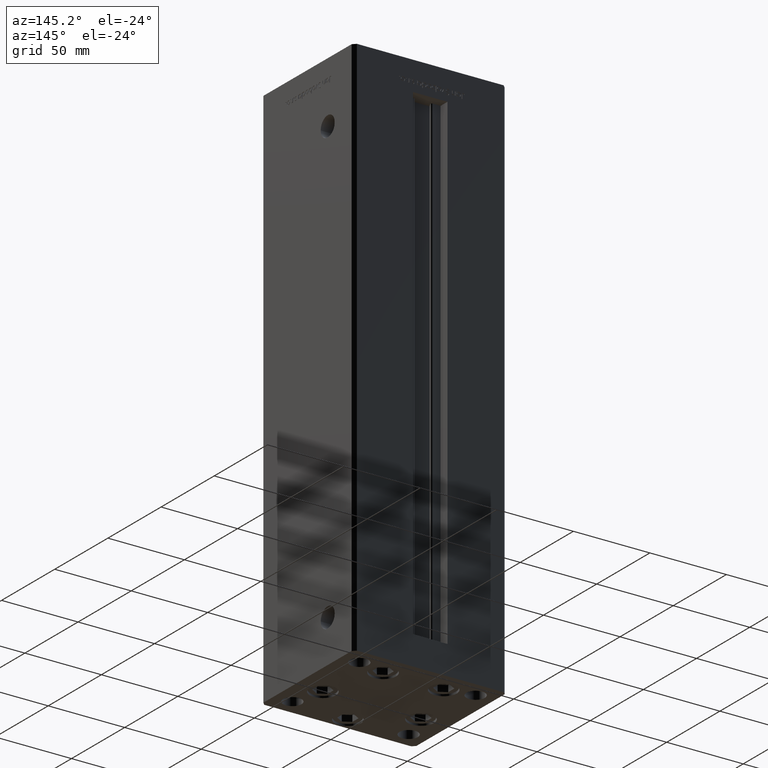
[diagram: clean part render]
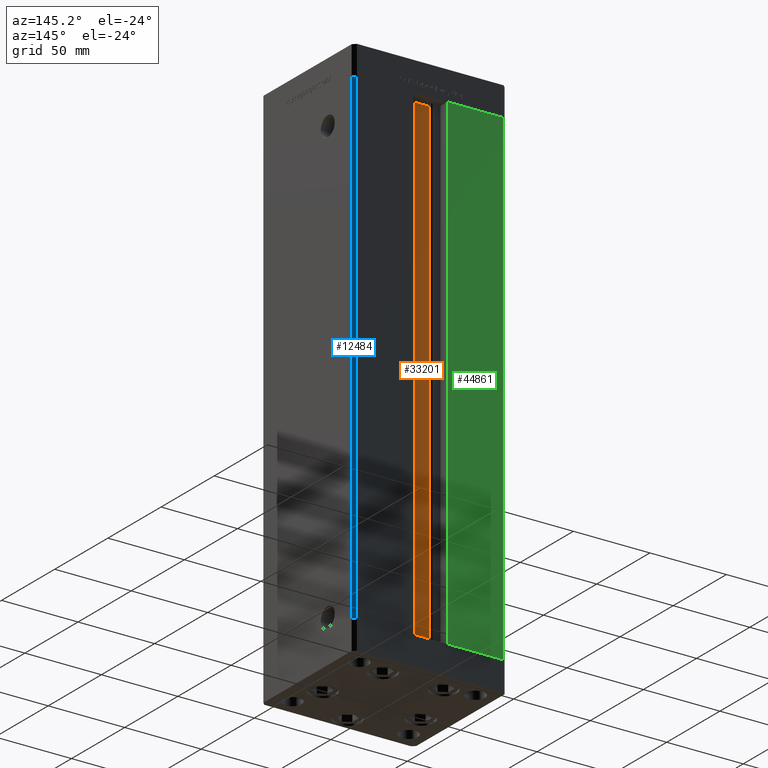
[diagram: same view with three faces highlighted in distinct colors, each labeled with its STEP entity id]
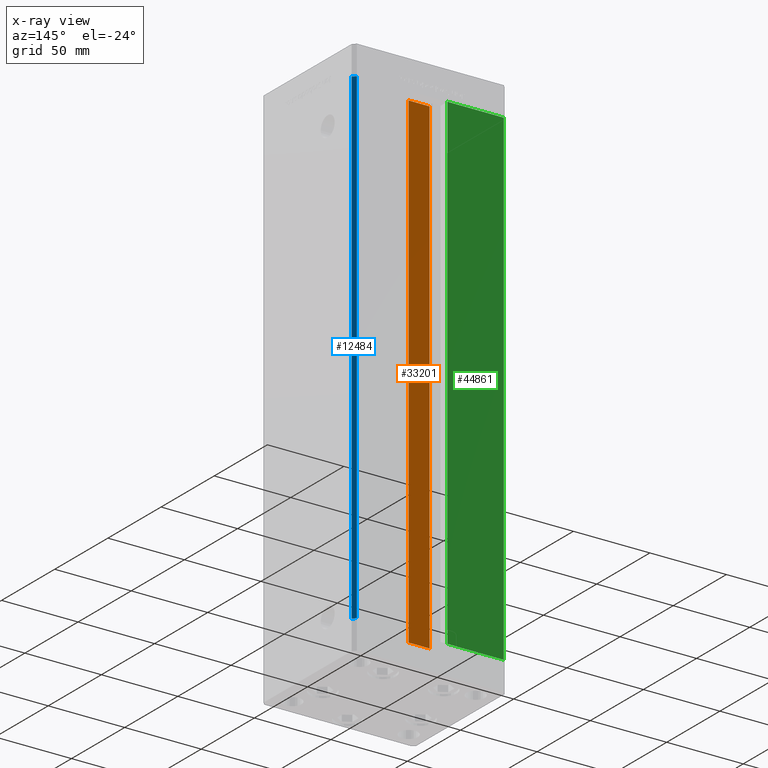
[diagram: x-ray of the same camera — body ghosted, the three highlighted faces saturated]
A machine part, auxiliary view with three faces highlighted in distinct colors.
The next image is the same camera in x-ray (body ghosted, the three faces saturated) — at least one of them is partly hidden behind the body in this view.
Their STEP definitions:

[orange] entity #33201 — the highlighted planar face has unit normal (0, -1, 0).
#333 = LINE ( 'NONE', #31770, #3927 ) ;
#551 = CARTESIAN_POINT ( 'NONE',  ( 6.876153656360465050, 32.99999999999986500, 0.000000000000000000 ) ) ;
#1448 = ORIENTED_EDGE ( 'NONE', *, *, #43916, .T. ) ;
#1594 = CARTESIAN_POINT ( 'NONE',  ( 6.876153656360465050, 32.99999999999986500, 0.000000000000000000 ) ) ;
#2938 = EDGE_CURVE ( 'NONE', #40730, #41706, #21673, .T. ) ;
#3031 = PLANE ( 'NONE',  #32833 ) ;
#3798 = EDGE_CURVE ( 'NONE', #41706, #50554, #333, .T. ) ;
#3927 = VECTOR ( 'NONE', #12486, 1000.000000000000000 ) ;
#4693 = DIRECTION ( 'NONE',  ( -1.000000000000000000, 0.000000000000000000, 0.000000000000000000 ) ) ;
#6493 = DIRECTION ( 'NONE',  ( 0.000000000000000000, 0.000000000000000000, -1.000000000000000000 ) ) ;
#9029 = CARTESIAN_POINT ( 'NONE',  ( -6.876153656360465050, 32.99999999999986500, 0.000000000000000000 ) ) ;
#10674 = VECTOR ( 'NONE', #30896, 1000.000000000000000 ) ;
#11295 = EDGE_CURVE ( 'NONE', #50554, #52120, #17375, .T. ) ;
#12486 = DIRECTION ( 'NONE',  ( -0.000000000000000000, -0.000000000000000000, 1.000000000000000000 ) ) ;
#16791 = ORIENTED_EDGE ( 'NONE', *, *, #3798, .F. ) ;
#17375 = LINE ( 'NONE', #44541, #49668 ) ;
#21673 = LINE ( 'NONE', #1594, #10674 ) ;
#21718 = EDGE_LOOP ( 'NONE', ( #16791, #22705, #1448, #40918 ) ) ;
#22190 = VECTOR ( 'NONE', #25122, 1000.000000000000000 ) ;
#22705 = ORIENTED_EDGE ( 'NONE', *, *, #2938, .F. ) ;
#24346 = LINE ( 'NONE', #9029, #22190 ) ;
#25122 = DIRECTION ( 'NONE',  ( -0.000000000000000000, -0.000000000000000000, 1.000000000000000000 ) ) ;
#27171 = CARTESIAN_POINT ( 'NONE',  ( 6.876153656360465050, 32.99999999999986500, 318.5000000000000000 ) ) ;
#30780 = CARTESIAN_POINT ( 'NONE',  ( 6.876153656360465050, 32.99999999999986500, 0.000000000000000000 ) ) ;
#30896 = DIRECTION ( 'NONE',  ( 1.000000000000000000, -0.000000000000000000, -0.000000000000000000 ) ) ;
#31770 = CARTESIAN_POINT ( 'NONE',  ( 6.876153656360465050, 32.99999999999986500, 0.000000000000000000 ) ) ;
#32833 = AXIS2_PLACEMENT_3D ( 'NONE', #30780, #46848, #6493 ) ;
#33201 = ADVANCED_FACE ( 'NONE', ( #42891 ), #3031, .F. ) ;
#40730 = VERTEX_POINT ( 'NONE', #50730 ) ;
#40918 = ORIENTED_EDGE ( 'NONE', *, *, #11295, .F. ) ;
#41706 = VERTEX_POINT ( 'NONE', #551 ) ;
#42891 = FACE_OUTER_BOUND ( 'NONE', #21718, .T. ) ;
#43916 = EDGE_CURVE ( 'NONE', #40730, #52120, #24346, .T. ) ;
#44541 = CARTESIAN_POINT ( 'NONE',  ( 0.000000000000000000, 32.99999999999986500, 318.5000000000000000 ) ) ;
#46230 = CARTESIAN_POINT ( 'NONE',  ( -6.876153656360465050, 32.99999999999986500, 318.5000000000000000 ) ) ;
#46848 = DIRECTION ( 'NONE',  ( 0.000000000000000000, -1.000000000000000000, -0.000000000000000000 ) ) ;
#49668 = VECTOR ( 'NONE', #4693, 1000.000000000000000 ) ;
#50554 = VERTEX_POINT ( 'NONE', #27171 ) ;
#50730 = CARTESIAN_POINT ( 'NONE',  ( -6.876153656360465050, 32.99999999999986500, 0.000000000000000000 ) ) ;
#52120 = VERTEX_POINT ( 'NONE', #46230 ) ;

[blue] entity #12484 — the highlighted planar face has unit normal (0.7071, 0.7071, 0).
#2858 = DIRECTION ( 'NONE',  ( 0.7071067811865487940, -0.7071067811865463515, 0.000000000000000000 ) ) ;
#3376 = DIRECTION ( 'NONE',  ( -0.000000000000000000, -0.000000000000000000, -1.000000000000000000 ) ) ;
#3544 = ORIENTED_EDGE ( 'NONE', *, *, #21295, .T. ) ;
#4724 = DIRECTION ( 'NONE',  ( -0.7071067811865487940, 0.7071067811865463515, 0.000000000000000000 ) ) ;
#6055 = LINE ( 'NONE', #11064, #10253 ) ;
#6729 = VERTEX_POINT ( 'NONE', #10066 ) ;
#8123 = EDGE_CURVE ( 'NONE', #6729, #21772, #13104, .T. ) ;
#10066 = CARTESIAN_POINT ( 'NONE',  ( 48.00000000000000711, 43.50000000000000000, 318.5000000000000000 ) ) ;
#10253 = VECTOR ( 'NONE', #2858, 1000.000000000000000 ) ;
#11064 = CARTESIAN_POINT ( 'NONE',  ( 48.00000000000000711, 43.50000000000000000, 318.5000000000000000 ) ) ;
#11160 = LINE ( 'NONE', #27259, #13794 ) ;
#12121 = VERTEX_POINT ( 'NONE', #12213 ) ;
#12213 = CARTESIAN_POINT ( 'NONE',  ( 50.00000000000001421, 41.49999999999999289, 318.5000000000000000 ) ) ;
#12405 = CARTESIAN_POINT ( 'NONE',  ( 48.00000000000000711, 43.50000000000000000, 318.5000000000000000 ) ) ;
#12438 = DIRECTION ( 'NONE',  ( 0.7071067811865487940, -0.7071067811865463515, 0.000000000000000000 ) ) ;
#12484 = ADVANCED_FACE ( 'NONE', ( #36669 ), #40885, .T. ) ;
#13104 = LINE ( 'NONE', #29996, #27695 ) ;
#13794 = VECTOR ( 'NONE', #12438, 1000.000000000000000 ) ;
#16049 = CARTESIAN_POINT ( 'NONE',  ( 50.00000000000001421, 41.49999999999999289, 318.5000000000000000 ) ) ;
#16312 = LINE ( 'NONE', #16049, #29608 ) ;
#21120 = EDGE_CURVE ( 'NONE', #6729, #12121, #6055, .T. ) ;
#21295 = EDGE_CURVE ( 'NONE', #12121, #46102, #16312, .T. ) ;
#21772 = VERTEX_POINT ( 'NONE', #23077 ) ;
#23077 = CARTESIAN_POINT ( 'NONE',  ( 48.00000000000000711, 43.50000000000000000, 0.000000000000000000 ) ) ;
#24055 = ORIENTED_EDGE ( 'NONE', *, *, #8123, .F. ) ;
#24542 = DIRECTION ( 'NONE',  ( 0.7071067811865463515, 0.7071067811865487940, -0.000000000000000000 ) ) ;
#24708 = CARTESIAN_POINT ( 'NONE',  ( 50.00000000000001421, 41.49999999999999289, 0.000000000000000000 ) ) ;
#27259 = CARTESIAN_POINT ( 'NONE',  ( 48.00000000000000711, 43.50000000000000000, 0.000000000000000000 ) ) ;
#27695 = VECTOR ( 'NONE', #42125, 1000.000000000000000 ) ;
#29608 = VECTOR ( 'NONE', #3376, 1000.000000000000000 ) ;
#29996 = CARTESIAN_POINT ( 'NONE',  ( 48.00000000000000711, 43.50000000000000000, 318.5000000000000000 ) ) ;
#32538 = ORIENTED_EDGE ( 'NONE', *, *, #45576, .F. ) ;
#36669 = FACE_OUTER_BOUND ( 'NONE', #47342, .T. ) ;
#40885 = PLANE ( 'NONE',  #41307 ) ;
#41307 = AXIS2_PLACEMENT_3D ( 'NONE', #12405, #24542, #4724 ) ;
#41704 = ORIENTED_EDGE ( 'NONE', *, *, #21120, .T. ) ;
#42125 = DIRECTION ( 'NONE',  ( -0.000000000000000000, -0.000000000000000000, -1.000000000000000000 ) ) ;
#45576 = EDGE_CURVE ( 'NONE', #21772, #46102, #11160, .T. ) ;
#46102 = VERTEX_POINT ( 'NONE', #24708 ) ;
#47342 = EDGE_LOOP ( 'NONE', ( #32538, #24055, #41704, #3544 ) ) ;

[green] entity #44861 — the highlighted planar face has unit normal (0, -1, 0).
#2098 = CARTESIAN_POINT ( 'NONE',  ( -11.24999999999999822, 43.50000000000000000, 318.5000000000000000 ) ) ;
#2333 = CARTESIAN_POINT ( 'NONE',  ( -11.24999999999999822, 43.50000000000000000, 0.000000000000000000 ) ) ;
#3797 = CARTESIAN_POINT ( 'NONE',  ( -48.00000000000000711, 43.50000000000000000, 0.000000000000000000 ) ) ;
#4035 = EDGE_CURVE ( 'NONE', #24427, #18823, #22497, .T. ) ;
#7780 = CARTESIAN_POINT ( 'NONE',  ( -48.00000000000000711, 43.50000000000000000, 318.5000000000000000 ) ) ;
#8870 = DIRECTION ( 'NONE',  ( 1.000000000000000000, 0.000000000000000000, 0.000000000000000000 ) ) ;
#10934 = VECTOR ( 'NONE', #48384, 1000.000000000000000 ) ;
#11536 = VECTOR ( 'NONE', #42290, 1000.000000000000000 ) ;
#12863 = CARTESIAN_POINT ( 'NONE',  ( -48.00000000000000711, 43.50000000000000000, 318.5000000000000000 ) ) ;
#14151 = EDGE_LOOP ( 'NONE', ( #41294, #18785, #42455, #26163 ) ) ;
#17549 = CARTESIAN_POINT ( 'NONE',  ( -11.24999999999999822, 43.50000000000000000, 318.5000000000000000 ) ) ;
#17845 = LINE ( 'NONE', #25767, #44788 ) ;
#17962 = FACE_OUTER_BOUND ( 'NONE', #14151, .T. ) ;
#18208 = VERTEX_POINT ( 'NONE', #3797 ) ;
#18785 = ORIENTED_EDGE ( 'NONE', *, *, #4035, .F. ) ;
#18823 = VERTEX_POINT ( 'NONE', #17549 ) ;
#22256 = EDGE_CURVE ( 'NONE', #24427, #18208, #26491, .T. ) ;
#22497 = LINE ( 'NONE', #38855, #11536 ) ;
#24427 = VERTEX_POINT ( 'NONE', #2333 ) ;
#24673 = VERTEX_POINT ( 'NONE', #12863 ) ;
#25767 = CARTESIAN_POINT ( 'NONE',  ( -11.24999999999999822, 43.50000000000000000, 318.5000000000000000 ) ) ;
#26163 = ORIENTED_EDGE ( 'NONE', *, *, #32776, .F. ) ;
#26491 = LINE ( 'NONE', #39140, #38878 ) ;
#28105 = LINE ( 'NONE', #7780, #10934 ) ;
#30090 = DIRECTION ( 'NONE',  ( 0.000000000000000000, -0.000000000000000000, -1.000000000000000000 ) ) ;
#30445 = DIRECTION ( 'NONE',  ( -1.000000000000000000, 0.000000000000000000, 0.000000000000000000 ) ) ;
#32776 = EDGE_CURVE ( 'NONE', #24673, #18208, #28105, .T. ) ;
#38017 = PLANE ( 'NONE',  #42449 ) ;
#38855 = CARTESIAN_POINT ( 'NONE',  ( -11.24999999999999822, 43.50000000000000000, 0.000000000000000000 ) ) ;
#38878 = VECTOR ( 'NONE', #30445, 1000.000000000000000 ) ;
#39140 = CARTESIAN_POINT ( 'NONE',  ( -11.24999999999999822, 43.50000000000000000, 0.000000000000000000 ) ) ;
#39535 = EDGE_CURVE ( 'NONE', #24673, #18823, #17845, .T. ) ;
#41294 = ORIENTED_EDGE ( 'NONE', *, *, #39535, .T. ) ;
#42290 = DIRECTION ( 'NONE',  ( -0.000000000000000000, -0.000000000000000000, 1.000000000000000000 ) ) ;
#42449 = AXIS2_PLACEMENT_3D ( 'NONE', #2098, #45907, #30090 ) ;
#42455 = ORIENTED_EDGE ( 'NONE', *, *, #22256, .T. ) ;
#44788 = VECTOR ( 'NONE', #8870, 1000.000000000000000 ) ;
#44861 = ADVANCED_FACE ( 'NONE', ( #17962 ), #38017, .F. ) ;
#45907 = DIRECTION ( 'NONE',  ( 0.000000000000000000, -1.000000000000000000, 0.000000000000000000 ) ) ;
#48384 = DIRECTION ( 'NONE',  ( -0.000000000000000000, -0.000000000000000000, -1.000000000000000000 ) ) ;